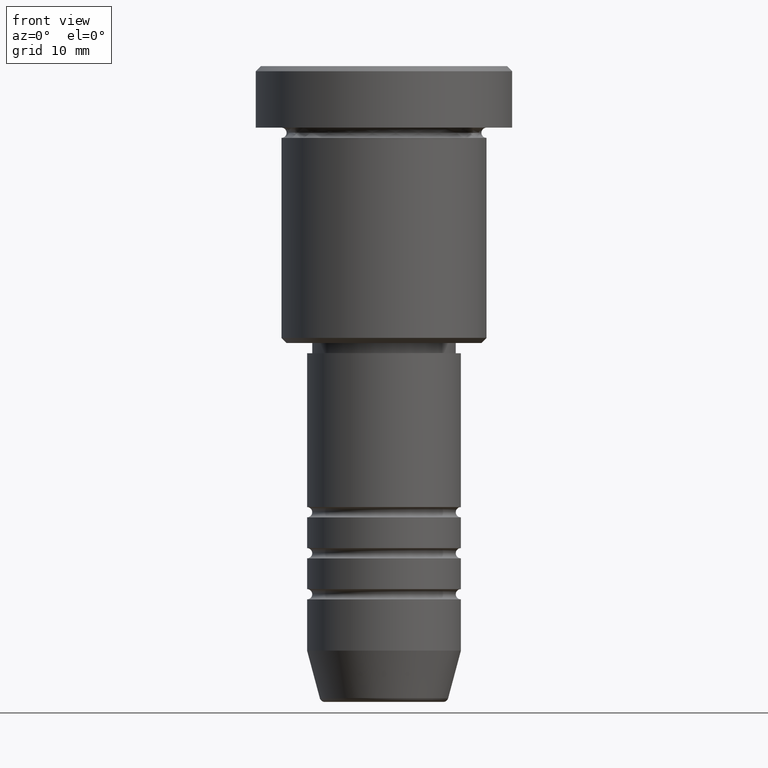
[diagram: clean part render]
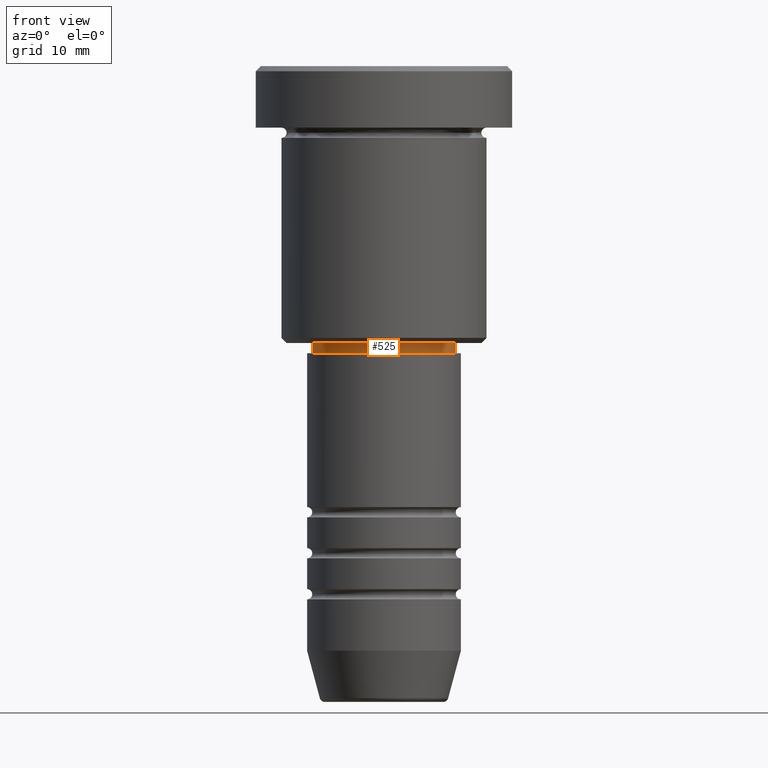
[diagram: same view with one face highlighted and labeled with its STEP entity id]
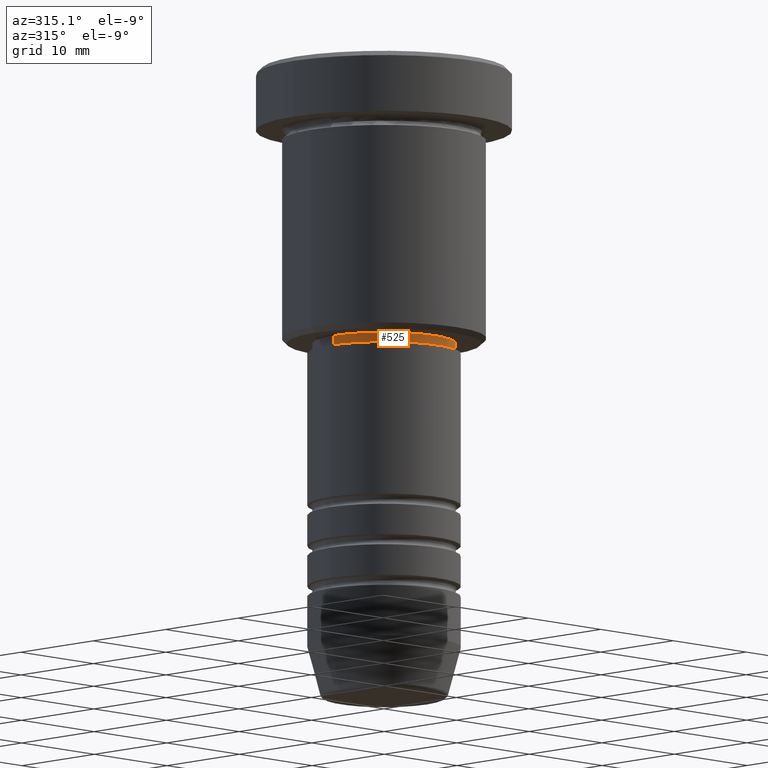
[diagram: same view with one face highlighted and labeled with its STEP entity id]
A machine part, front view. The second image highlights one B-rep face of the part: STEP entity #525.
A second angle (auxiliary view) of the same face is appended — the face is thin or edge-on in the first view.
In plain terms, the highlighted cylindrical surface (partial cylindrical patch) has radius 7 mm, axis along (-0, -0, 1).
Its self-contained STEP definition (entity closure, byte-faithful):
#7 = ORIENTED_EDGE ( 'NONE', *, *, #302, .T. ) ;
#23 = DIRECTION ( 'NONE',  ( -0.000000000000000000, -0.000000000000000000, 1.000000000000000000 ) ) ;
#28 = VECTOR ( 'NONE', #23, 1000.000000000000000 ) ;
#39 = FACE_OUTER_BOUND ( 'NONE', #133, .T. ) ;
#42 = DIRECTION ( 'NONE',  ( 1.000000000000000000, 0.000000000000000000, 0.000000000000000000 ) ) ;
#71 = CARTESIAN_POINT ( 'NONE',  ( 0.000000000000000000, 0.000000000000000000, -27.99999999999999645 ) ) ;
#133 = EDGE_LOOP ( 'NONE', ( #352, #7, #274, #265 ) ) ;
#135 = CIRCLE ( 'NONE', #812, 6.999999999999999112 ) ;
#163 = DIRECTION ( 'NONE',  ( -0.000000000000000000, -0.000000000000000000, 1.000000000000000000 ) ) ;
#172 = CARTESIAN_POINT ( 'NONE',  ( 0.000000000000000000, 0.000000000000000000, -26.99999999999999645 ) ) ;
#189 = DIRECTION ( 'NONE',  ( 1.000000000000000000, 0.000000000000000000, 0.000000000000000000 ) ) ;
#213 = EDGE_CURVE ( 'NONE', #550, #268, #575, .T. ) ;
#214 = CARTESIAN_POINT ( 'NONE',  ( 6.999999999999999112, 0.000000000000000000, -27.99999999999999645 ) ) ;
#229 = CYLINDRICAL_SURFACE ( 'NONE', #877, 6.999999999999999112 ) ;
#233 = DIRECTION ( 'NONE',  ( -0.000000000000000000, -0.000000000000000000, 1.000000000000000000 ) ) ;
#265 = ORIENTED_EDGE ( 'NONE', *, *, #965, .F. ) ;
#268 = VERTEX_POINT ( 'NONE', #1043 ) ;
#274 = ORIENTED_EDGE ( 'NONE', *, *, #836, .T. ) ;
#302 = EDGE_CURVE ( 'NONE', #550, #1026, #439, .T. ) ;
#352 = ORIENTED_EDGE ( 'NONE', *, *, #213, .F. ) ;
#387 = DIRECTION ( 'NONE',  ( -0.000000000000000000, -0.000000000000000000, 1.000000000000000000 ) ) ;
#439 = CIRCLE ( 'NONE', #1106, 6.999999999999999112 ) ;
#486 = CARTESIAN_POINT ( 'NONE',  ( -6.999999999999999112, 8.572527594031472204E-16, 0.000000000000000000 ) ) ;
#525 = ADVANCED_FACE ( 'NONE', ( #39 ), #229, .T. ) ;
#550 = VERTEX_POINT ( 'NONE', #824 ) ;
#575 = LINE ( 'NONE', #486, #28 ) ;
#598 = DIRECTION ( 'NONE',  ( 1.000000000000000000, 0.000000000000000000, 0.000000000000000000 ) ) ;
#812 = AXIS2_PLACEMENT_3D ( 'NONE', #172, #387, #189 ) ;
#815 = CARTESIAN_POINT ( 'NONE',  ( 6.999999999999999112, 0.000000000000000000, 0.000000000000000000 ) ) ;
#824 = CARTESIAN_POINT ( 'NONE',  ( -6.999999999999999112, 8.572527594031472204E-16, -27.99999999999999645 ) ) ;
#836 = EDGE_CURVE ( 'NONE', #1026, #1170, #989, .T. ) ;
#872 = CARTESIAN_POINT ( 'NONE',  ( 0.000000000000000000, 0.000000000000000000, 0.000000000000000000 ) ) ;
#877 = AXIS2_PLACEMENT_3D ( 'NONE', #872, #233, #598 ) ;
#927 = VECTOR ( 'NONE', #1093, 1000.000000000000000 ) ;
#965 = EDGE_CURVE ( 'NONE', #268, #1170, #135, .T. ) ;
#976 = CARTESIAN_POINT ( 'NONE',  ( 6.999999999999999112, 0.000000000000000000, -26.99999999999999645 ) ) ;
#989 = LINE ( 'NONE', #815, #927 ) ;
#1026 = VERTEX_POINT ( 'NONE', #214 ) ;
#1043 = CARTESIAN_POINT ( 'NONE',  ( -6.999999999999999112, 8.572527594031472204E-16, -26.99999999999999645 ) ) ;
#1093 = DIRECTION ( 'NONE',  ( -0.000000000000000000, -0.000000000000000000, 1.000000000000000000 ) ) ;
#1106 = AXIS2_PLACEMENT_3D ( 'NONE', #71, #163, #42 ) ;
#1170 = VERTEX_POINT ( 'NONE', #976 ) ;